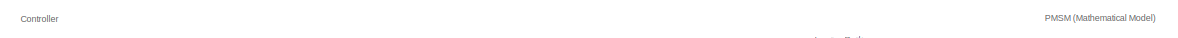
[diagram: root canvas - part 1/4, top center region]
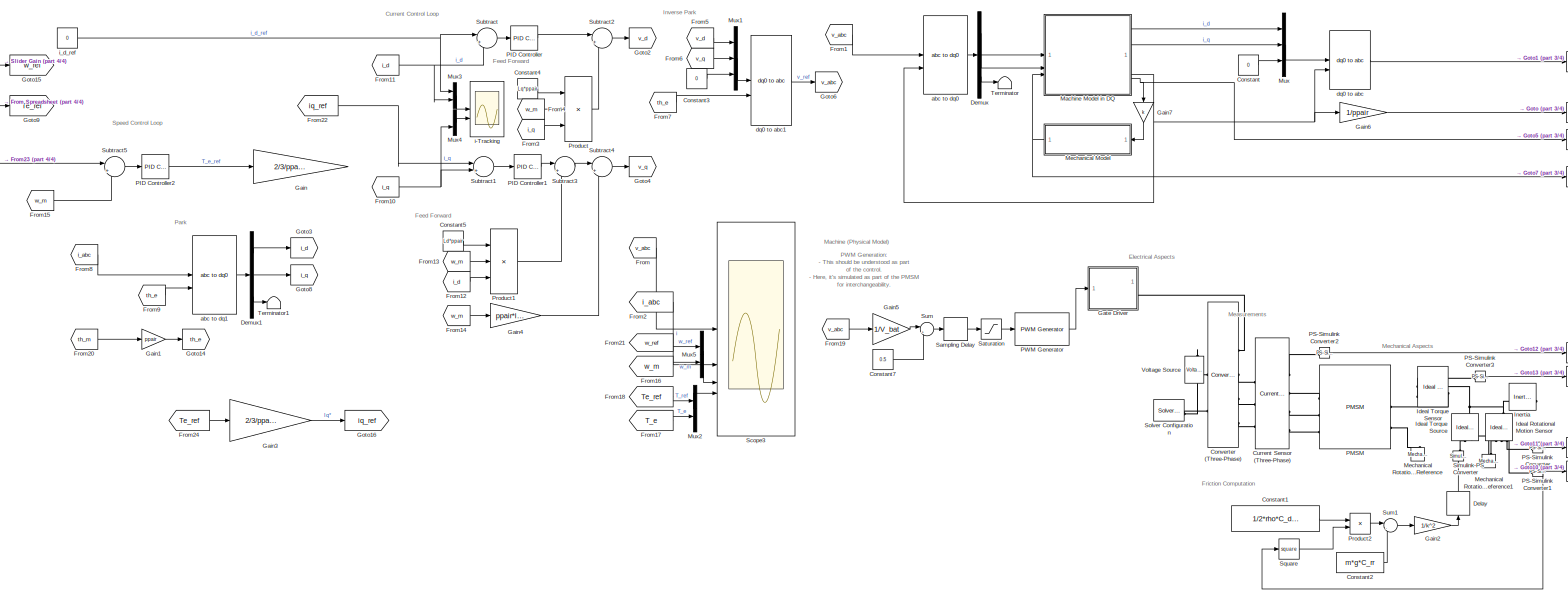
[diagram: root canvas - part 2/4, most of the canvas]
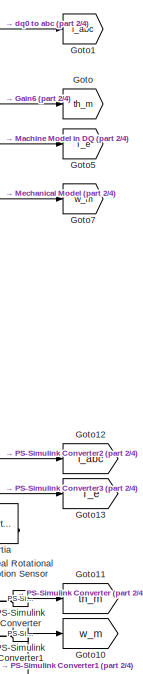
[diagram: root canvas - part 3/4, middle right region]
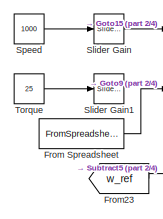
[diagram: root canvas - part 4/4, top left region]
MODEL slx_a406dee03cd6
KIND model
CONFIG AbsTol = auto
CONFIG EnableMultiTasking = off
CONFIG FixedStep = 1e-5
CONFIG MaxStep = 1e-4
CONFIG MinStep = auto
CONFIG RelTol = 1e-3
CONFIG SampleTimeConstraint = Unconstrained
CONFIG SolverName = FixedStepAuto
CONFIG StartTime = 0.0
CONFIG StopTime = 40
BLOCK [Constant] Constant
  Value = 0
BLOCK [Constant] Constant1
  Commented = on
  Value = 1/2*rho*C_d*A_f*r^2
BLOCK [Constant] Constant2
  Commented = on
  Value = m*g*C_rr
BLOCK [Constant] Constant3
  Value = 0
BLOCK [Constant] Constant4
  Value = Lq*ppair
BLOCK [Constant] Constant5
  Value = Ld*ppair
BLOCK [Constant] Constant7
  Commented = on
  Value = 0.5
BLOCK [Reference] Converter (Three-Phase)  REF=ee_lib/Semiconductors &
Converters/Converters/Converter
(Three-Phase)
  Commented = on
  SourceBlock = ee_lib/Semiconductors &\nConverters/Converters/Converter\n(Three-Phase)
  SourceType = Converter\n(Three-Phase)
BLOCK [Reference] Current Sensor (Three-Phase)  REF=ee_lib/Sensors &
Transducers/Current Sensor
(Three-Phase)
  Commented = on
  SourceBlock = ee_lib/Sensors &\nTransducers/Current Sensor\n(Three-Phase)
  SourceType = Current Sensor\n(Three-Phase)
BLOCK [Delay] Delay
  Commented = on
  DelayLength = 1
  InputPortMap = u0
  NameLocation = right
BLOCK [Demux] Demux
  Outputs = 3
BLOCK [Demux] Demux1
  Outputs = 3
BLOCK [From] From
  GotoTag = v_abc
BLOCK [FromSpreadsheet] From Spreadsheet
  FileName = Inverter_Lap_Sim_Current_Calcs.xlsx
BLOCK [From] From1
  GotoTag = v_abc
BLOCK [From] From10
  GotoTag = i_q
BLOCK [From] From11
  GotoTag = i_d
BLOCK [From] From12
  GotoTag = i_d
BLOCK [From] From13
  GotoTag = w_m
BLOCK [From] From14
  GotoTag = w_m
BLOCK [From] From15
  GotoTag = w_m
BLOCK [From] From16
  GotoTag = w_m
BLOCK [From] From17
  GotoTag = T_e
BLOCK [From] From18
  GotoTag = Te_ref
BLOCK [From] From19
  Commented = on
  GotoTag = v_abc
BLOCK [From] From2
  GotoTag = i_abc
BLOCK [From] From20
  GotoTag = th_m
BLOCK [From] From21
  GotoTag = w_ref
BLOCK [From] From22
  GotoTag = iq_ref
BLOCK [From] From23
  GotoTag = w_ref
BLOCK [From] From24
  GotoTag = Te_ref
BLOCK [From] From3
  GotoTag = i_q
BLOCK [From] From4
  GotoTag = w_m
BLOCK [From] From5
  GotoTag = v_d
BLOCK [From] From6
  GotoTag = v_q
BLOCK [From] From7
  GotoTag = th_e
BLOCK [From] From8
  GotoTag = i_abc
BLOCK [From] From9
  GotoTag = th_e
BLOCK [Gain] Gain
  Gain = 2/3/ppair/lambda
BLOCK [Gain] Gain1
  Gain = ppair
BLOCK [Gain] Gain2
  Commented = on
  Gain = 1/k^2
BLOCK [Gain] Gain3
  Gain = 2/3/ppair/lambda
BLOCK [Gain] Gain4
  Gain = ppair*lambda
BLOCK [Gain] Gain5
  Commented = on
  Gain = 1/V_bat
BLOCK [Gain] Gain6
  Gain = 1/ppair
BLOCK [Gain] Gain7
  Gain = k
  NameLocation = left
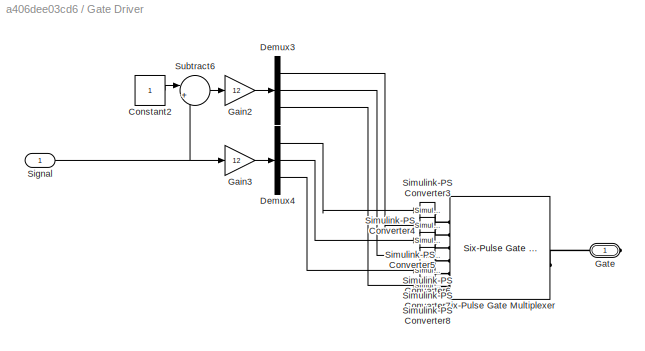
BLOCK [SubSystem] Gate Driver
  Commented = on
BLOCK [Constant] Gate Driver/Constant2
BLOCK [Demux] Gate Driver/Demux3
  Outputs = 3
BLOCK [Demux] Gate Driver/Demux4
  Outputs = 3
BLOCK [Gain] Gate Driver/Gain2
  Gain = 12
BLOCK [Gain] Gate Driver/Gain3
  Gain = 12
BLOCK [PMIOPort] Gate Driver/Gate
  Side = Right
BLOCK [Inport] Gate Driver/Signal
BLOCK [Reference] Gate Driver/Simulink-PS Converter3  REF=nesl_utility/Simulink-PS
Converter
  SourceBlock = nesl_utility/Simulink-PS\nConverter
  SourceType = Simulink-PS\nConverter
BLOCK [Reference] Gate Driver/Simulink-PS Converter4  REF=nesl_utility/Simulink-PS
Converter
  SourceBlock = nesl_utility/Simulink-PS\nConverter
  SourceType = Simulink-PS\nConverter
BLOCK [Reference] Gate Driver/Simulink-PS Converter5  REF=nesl_utility/Simulink-PS
Converter
  SourceBlock = nesl_utility/Simulink-PS\nConverter
  SourceType = Simulink-PS\nConverter
BLOCK [Reference] Gate Driver/Simulink-PS Converter6  REF=nesl_utility/Simulink-PS
Converter
  SourceBlock = nesl_utility/Simulink-PS\nConverter
  SourceType = Simulink-PS\nConverter
BLOCK [Reference] Gate Driver/Simulink-PS Converter7  REF=nesl_utility/Simulink-PS
Converter
  SourceBlock = nesl_utility/Simulink-PS\nConverter
  SourceType = Simulink-PS\nConverter
BLOCK [Reference] Gate Driver/Simulink-PS Converter8  REF=nesl_utility/Simulink-PS
Converter
  SourceBlock = nesl_utility/Simulink-PS\nConverter
  SourceType = Simulink-PS\nConverter
BLOCK [Reference] Gate Driver/Six-Pulse Gate Multiplexer  REF=ee_lib/Semiconductors &
Converters/Converters/Six-Pulse Gate
Multiplexer
  SourceBlock = ee_lib/Semiconductors &\nConverters/Converters/Six-Pulse Gate\nMultiplexer
  SourceType = Six-Pulse Gate\nMultiplexer
BLOCK [Sum] Gate Driver/Subtract6
  Inputs = |+-
BLOCK [Goto] Goto
  GotoTag = th_m
BLOCK [Goto] Goto1
  GotoTag = i_abc
BLOCK [Goto] Goto10
  Commented = on
  GotoTag = w_m
BLOCK [Goto] Goto11
  Commented = on
  GotoTag = th_m
BLOCK [Goto] Goto12
  Commented = on
  GotoTag = i_abc
BLOCK [Goto] Goto13
  Commented = on
  GotoTag = T_e
BLOCK [Goto] Goto14
  GotoTag = th_e
BLOCK [Goto] Goto15
  GotoTag = w_ref
BLOCK [Goto] Goto16
  GotoTag = iq_ref
BLOCK [Goto] Goto2
  GotoTag = v_d
BLOCK [Goto] Goto3
  GotoTag = i_d
BLOCK [Goto] Goto4
  GotoTag = v_q
BLOCK [Goto] Goto5
  GotoTag = T_e
BLOCK [Goto] Goto6
  GotoTag = v_abc
BLOCK [Goto] Goto7
  GotoTag = w_m
BLOCK [Goto] Goto8
  GotoTag = i_q
BLOCK [Goto] Goto9
  GotoTag = Te_ref
BLOCK [Reference] Ideal Rotational Motion Sensor  REF=fl_lib/Mechanical/Mechanical Sensors/Ideal Rotational
Motion Sensor
  Commented = on
  NameLocation = left
  SourceBlock = fl_lib/Mechanical/Mechanical Sensors/Ideal Rotational\nMotion Sensor
  SourceType = Ideal Rotational\nMotion Sensor
BLOCK [Reference] Ideal Torque Sensor  REF=fl_lib/Mechanical/Mechanical Sensors/Ideal Torque Sensor
  Commented = on
  NameLocation = top
  SourceBlock = fl_lib/Mechanical/Mechanical Sensors/Ideal Torque Sensor
  SourceType = Ideal Torque Sensor
BLOCK [Reference] Ideal Torque Source  REF=fl_lib/Mechanical/Mechanical Sources/Ideal Torque Source
  Commented = on
  NameLocation = right
  SourceBlock = fl_lib/Mechanical/Mechanical Sources/Ideal Torque Source
  SourceType = Ideal Torque Source
BLOCK [Reference] Inertia  REF=fl_lib/Mechanical/Rotational Elements/Inertia
  Commented = on
  NameLocation = top
  SourceBlock = fl_lib/Mechanical/Rotational Elements/Inertia
  SourceType = Inertia
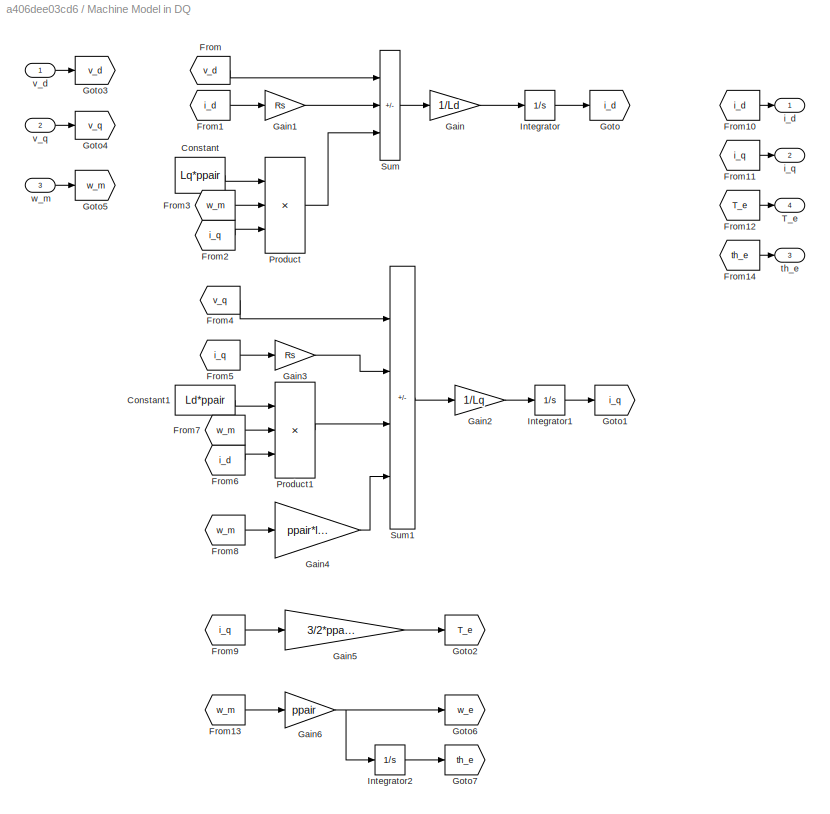
BLOCK [SubSystem] Machine Model in DQ
BLOCK [Constant] Machine Model in DQ/Constant
  Value = Lq*ppair
BLOCK [Constant] Machine Model in DQ/Constant1
  Value = Ld*ppair
BLOCK [From] Machine Model in DQ/From
  GotoTag = v_d
BLOCK [From] Machine Model in DQ/From1
  GotoTag = i_d
BLOCK [From] Machine Model in DQ/From10
  GotoTag = i_d
BLOCK [From] Machine Model in DQ/From11
  GotoTag = i_q
BLOCK [From] Machine Model in DQ/From12
  GotoTag = T_e
BLOCK [From] Machine Model in DQ/From13
  GotoTag = w_m
BLOCK [From] Machine Model in DQ/From14
  GotoTag = th_e
BLOCK [From] Machine Model in DQ/From2
  GotoTag = i_q
BLOCK [From] Machine Model in DQ/From3
  GotoTag = w_m
BLOCK [From] Machine Model in DQ/From4
  GotoTag = v_q
BLOCK [From] Machine Model in DQ/From5
  GotoTag = i_q
BLOCK [From] Machine Model in DQ/From6
  GotoTag = i_d
BLOCK [From] Machine Model in DQ/From7
  GotoTag = w_m
BLOCK [From] Machine Model in DQ/From8
  GotoTag = w_m
BLOCK [From] Machine Model in DQ/From9
  GotoTag = i_q
BLOCK [Gain] Machine Model in DQ/Gain
  Gain = 1/Ld
BLOCK [Gain] Machine Model in DQ/Gain1
  Gain = Rs
BLOCK [Gain] Machine Model in DQ/Gain2
  Gain = 1/Lq
BLOCK [Gain] Machine Model in DQ/Gain3
  Gain = Rs
BLOCK [Gain] Machine Model in DQ/Gain4
  Gain = ppair*lambda
BLOCK [Gain] Machine Model in DQ/Gain5
  Gain = 3/2*ppair*lambda
BLOCK [Gain] Machine Model in DQ/Gain6
  Gain = ppair
BLOCK [Goto] Machine Model in DQ/Goto
  GotoTag = i_d
BLOCK [Goto] Machine Model in DQ/Goto1
  GotoTag = i_q
BLOCK [Goto] Machine Model in DQ/Goto2
  GotoTag = T_e
BLOCK [Goto] Machine Model in DQ/Goto3
  GotoTag = v_d
BLOCK [Goto] Machine Model in DQ/Goto4
  GotoTag = v_q
BLOCK [Goto] Machine Model in DQ/Goto5
  GotoTag = w_m
BLOCK [Goto] Machine Model in DQ/Goto6
  GotoTag = w_e
BLOCK [Goto] Machine Model in DQ/Goto7
  GotoTag = th_e
BLOCK [Integrator] Machine Model in DQ/Integrator
BLOCK [Integrator] Machine Model in DQ/Integrator1
BLOCK [Integrator] Machine Model in DQ/Integrator2
BLOCK [Product] Machine Model in DQ/Product
  Inputs = 3
BLOCK [Product] Machine Model in DQ/Product1
  Inputs = 3
BLOCK [Sum] Machine Model in DQ/Sum
  IconShape = rectangular
  Inputs = +-+
BLOCK [Sum] Machine Model in DQ/Sum1
  IconShape = rectangular
  Inputs = +---
BLOCK [Outport] Machine Model in DQ/T_e
  Port = 4
BLOCK [Outport] Machine Model in DQ/i_d
BLOCK [Outport] Machine Model in DQ/i_q
  Port = 2
BLOCK [Outport] Machine Model in DQ/th_e
  Port = 3
BLOCK [Inport] Machine Model in DQ/v_d
BLOCK [Inport] Machine Model in DQ/v_q
  Port = 2
BLOCK [Inport] Machine Model in DQ/w_m
  Port = 3
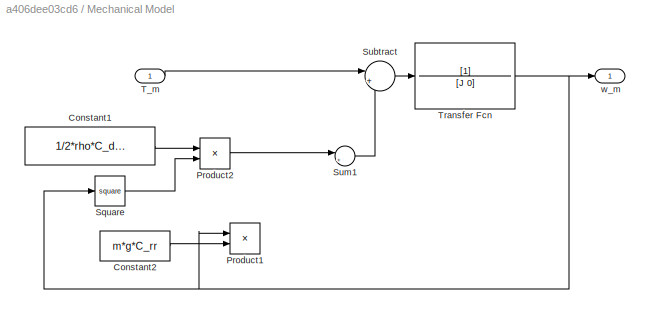
BLOCK [SubSystem] Mechanical Model
BLOCK [Constant] Mechanical Model/Constant1
  Value = 1/2*rho*C_d*A_f*r^2
BLOCK [Constant] Mechanical Model/Constant2
  Value = m*g*C_rr
BLOCK [Product] Mechanical Model/Product1
BLOCK [Product] Mechanical Model/Product2
BLOCK [Math] Mechanical Model/Square
  Operator = square
BLOCK [Sum] Mechanical Model/Subtract
  Inputs = |+-
BLOCK [Sum] Mechanical Model/Sum1
  Inputs = |++
BLOCK [Inport] Mechanical Model/T_m
BLOCK [TransferFcn] Mechanical Model/Transfer Fcn
  Denominator = [J 0]
BLOCK [Outport] Mechanical Model/w_m
BLOCK [Reference] Mechanical Rotational Reference  REF=fl_lib/Mechanical/Rotational Elements/Mechanical
Rotational Reference
  Commented = on
  NameLocation = right
  SourceBlock = fl_lib/Mechanical/Rotational Elements/Mechanical\nRotational Reference
  SourceType = Mechanical\nRotational Reference
BLOCK [Reference] Mechanical Rotational Reference1  REF=fl_lib/Mechanical/Rotational Elements/Mechanical
Rotational Reference
  Commented = on
  NameLocation = right
  SourceBlock = fl_lib/Mechanical/Rotational Elements/Mechanical\nRotational Reference
  SourceType = Mechanical\nRotational Reference
BLOCK [Mux] Mux
  DisplayOption = bar
  Inputs = 3
BLOCK [Mux] Mux1
  DisplayOption = bar
  Inputs = 3
BLOCK [Mux] Mux2
  DisplayOption = bar
  Inputs = 2
BLOCK [Mux] Mux3
  DisplayOption = bar
  Inputs = 2
BLOCK [Mux] Mux4
  DisplayOption = bar
  Inputs = 2
BLOCK [Mux] Mux5
  DisplayOption = bar
  Inputs = 2
BLOCK [Reference] PID Controller  REF=slpidlib/PID Controller
  LibrarySourceBlock = simulink/Continuous/PID Controller
  SourceBlock = slpidlib/PID Controller
  SourceType = PID 1dof
BLOCK [Reference] PID Controller1  REF=slpidlib/PID Controller
  LibrarySourceBlock = simulink/Continuous/PID Controller
  SourceBlock = slpidlib/PID Controller
  SourceType = PID 1dof
BLOCK [Reference] PID Controller2  REF=slpidlib/PID Controller
  LibrarySourceBlock = simulink/Continuous/PID Controller
  SourceBlock = slpidlib/PID Controller
  SourceType = PID 1dof
BLOCK [Reference] PMSM  REF=ee_lib/Electromechanical/Permanent Magnet/PMSM
  Commented = on
  SourceBlock = ee_lib/Electromechanical/Permanent Magnet/PMSM
  SourceType = PMSM
BLOCK [Reference] PS-Simulink Converter  REF=nesl_utility/PS-Simulink
Converter
  Commented = on
  SourceBlock = nesl_utility/PS-Simulink\nConverter
  SourceType = PS-Simulink\nConverter
BLOCK [Reference] PS-Simulink Converter1  REF=nesl_utility/PS-Simulink
Converter
  Commented = on
  SourceBlock = nesl_utility/PS-Simulink\nConverter
  SourceType = PS-Simulink\nConverter
BLOCK [Reference] PS-Simulink Converter2  REF=nesl_utility/PS-Simulink
Converter
  Commented = on
  SourceBlock = nesl_utility/PS-Simulink\nConverter
  SourceType = PS-Simulink\nConverter
BLOCK [Reference] PS-Simulink Converter3  REF=nesl_utility/PS-Simulink
Converter
  Commented = on
  SourceBlock = nesl_utility/PS-Simulink\nConverter
  SourceType = PS-Simulink\nConverter
BLOCK [Reference] PWM Generator  REF=eePwmGenerator/PWM Generator
  Commented = on
  LibrarySourceBlock = ee_sl_lib/Pulse Width\nModulation/PWM Generator
  SourceBlock = eePwmGenerator/PWM Generator
  SourceType = PWM Generator
BLOCK [Product] Product
  Inputs = 3
BLOCK [Product] Product1
  Inputs = 3
BLOCK [Product] Product2
  Commented = on
BLOCK [Delay] Sampling Delay
  Commented = on
  DelayLength = 1
  InputPortMap = u0
  SampleTime = 1e-6
BLOCK [Saturate] Saturation
  Commented = on
  LowerLimit = 0
  UpperLimit = 1
BLOCK [Scope] Scope3
  Floating = off
  NumInputPorts = 4
  ScopeSpecificationString = Simulink.scopes.TimeScopeBlockCfg('CurrentConfiguration', extmgr.ConfigurationSet(extmgr.Configuration('Core','General UI',true),extmgr.Configuration('Core','Source UI',true),extmgr.Configuration('Sources','WiredSimulink',true,'DataLoggingVariableName','ScopeData3'),extmgr.Configuration('Visuals','Time Domain',true,'SerializedDisplays',{struct('MinYLimReal','-54.09802','MaxYLimReal','61.90039','YL...<+4191ch>
BLOCK [Reference] Simulink-PS Converter  REF=nesl_utility/Simulink-PS
Converter
  Commented = on
  NameLocation = right
  SourceBlock = nesl_utility/Simulink-PS\nConverter
  SourceType = Simulink-PS\nConverter
BLOCK [Reference] Slider Gain  REF=simulink/Math
Operations/Slider
Gain
  SourceBlock = simulink/Math\nOperations/Slider\nGain
  SourceType = Slider Gain
BLOCK [Reference] Slider Gain1  REF=simulink/Math
Operations/Slider
Gain
  SourceBlock = simulink/Math\nOperations/Slider\nGain
  SourceType = Slider Gain
BLOCK [Reference] Solver Configuration  REF=nesl_utility/Solver
Configuration
  Commented = on
  SourceBlock = nesl_utility/Solver\nConfiguration
  SourceType = Solver\nConfiguration
BLOCK [Constant] Speed
  Value = 1000
BLOCK [Math] Square
  Commented = on
  Operator = square
BLOCK [Sum] Subtract
  Inputs = |+-
BLOCK [Sum] Subtract1
  Inputs = |+-
BLOCK [Sum] Subtract2
  Inputs = |+-
BLOCK [Sum] Subtract3
  Inputs = |++
BLOCK [Sum] Subtract4
  Inputs = |++
BLOCK [Sum] Subtract5
  Inputs = |+-
BLOCK [Sum] Sum
  Commented = on
  Inputs = |++
BLOCK [Sum] Sum1
  Commented = on
  Inputs = |--
BLOCK [Terminator] Terminator
BLOCK [Terminator] Terminator1
BLOCK [Constant] Torque
  Value = 25
BLOCK [Reference] Voltage Source  REF=ee_lib/Sources/Voltage Source
  Commented = on
  NameLocation = right
  SourceBlock = ee_lib/Sources/Voltage Source
  SourceType = Voltage Source
BLOCK [Reference] abc to dq0  REF=spsabctodq0Lib/abc to dq0
  LibrarySourceBlock = sps_lib/Control/abc to dq0
  SourceBlock = spsabctodq0Lib/abc to dq0
  SourceType = abc to dq0 Transformation
BLOCK [Reference] abc to dq1  REF=spsabctodq0Lib/abc to dq0
  LibrarySourceBlock = sps_lib/Control/abc to dq0
  SourceBlock = spsabctodq0Lib/abc to dq0
  SourceType = abc to dq0 Transformation
BLOCK [Reference] dq0 to abc  REF=spsdq0toabcLib/dq0 to abc
  LibrarySourceBlock = sps_lib/Control/dq0 to abc
  SourceBlock = spsdq0toabcLib/dq0 to abc
  SourceType = dq0 to abc Transformation
BLOCK [Reference] dq0 to abc1  REF=spsdq0toabcLib/dq0 to abc
  LibrarySourceBlock = sps_lib/Control/dq0 to abc
  SourceBlock = spsdq0toabcLib/dq0 to abc
  SourceType = dq0 to abc Transformation
BLOCK [Scope] i-Tracking
  Floating = off
  NumInputPorts = 2
  ScopeSpecificationString = Simulink.scopes.TimeScopeBlockCfg('CurrentConfiguration', extmgr.ConfigurationSet(extmgr.Configuration('Core','General UI',true),extmgr.Configuration('Core','Source UI',true),extmgr.Configuration('Sources','WiredSimulink',true,'DataLoggingVariableName','ScopeData1'),extmgr.Configuration('Visuals','Time Domain',true,'SerializedDisplays',{struct('MinYLimReal','-0.00000058','MaxYLimReal','0.00000032'...<+2319ch>
BLOCK [Constant] i_d_ref
  Value = 0
ANNOTATION (root): Controller
ANNOTATION (root): Current Control Loop
ANNOTATION (root): Electrical Aspects
ANNOTATION (root): Feed Forward
ANNOTATION (root): Friction Computation
ANNOTATION (root): Inverse Park
ANNOTATION (root): Machine (Physical Model)
ANNOTATION (root): Measurements
ANNOTATION (root): Mechanical Aspects
ANNOTATION (root): PMSM (Mathematical Model)
ANNOTATION (root): PWM Generation: - This should be understood as part of the control. - Here, it's simulated as part of the PMSM for interchangeability.
ANNOTATION (root): Park
ANNOTATION (root): Speed Control Loop
LINE Constant1:1 -> Product2:1
LINE Constant2:1 -> Sum1:2
LINE Constant3:1 -> Mux1:3
LINE Constant4:1 -> Product:1
LINE Constant5:1 -> Product1:1
LINE Constant7:1 -> Sum:2
LINE Constant:1 -> Mux:3
LINE Delay:1 -> Simulink-PS Converter:1
LINE Demux1:1 -> Goto3:1
LINE Demux1:2 -> Goto8:1
LINE Demux1:3 -> Terminator1:1
LINE Demux:1 -> Machine Model in DQ:1
LINE Demux:2 -> Machine Model in DQ:2
LINE Demux:3 -> Terminator:1
LINE From Spreadsheet:1 -> Goto9:1
NET From10:1 -> Mux4:2, Subtract1:2
NET From11:1 -> Mux3:2, Subtract:2
LINE From12:1 -> Product1:3
LINE From13:1 -> Product1:2
LINE From14:1 -> Gain4:1
LINE From15:1 -> Subtract5:2
LINE From16:1 -> Mux5:2
LINE From17:1 -> Mux2:2
LINE From18:1 -> Mux2:1
LINE From19:1 -> Gain5:1
LINE From1:1 -> abc to dq0:1
LINE From20:1 -> Gain1:1
LINE From21:1 -> Mux5:1
LINE From22:1 -> Subtract1:1
LINE From23:1 -> Subtract5:1
LINE From24:1 -> Gain3:1
LINE From2:1 -> Scope3:2
LINE From3:1 -> Product:3
LINE From4:1 -> Product:2
LINE From5:1 -> Mux1:1
LINE From6:1 -> Mux1:2
LINE From7:1 -> dq0 to abc1:2
LINE From8:1 -> abc to dq1:1
LINE From9:1 -> abc to dq1:2
LINE From:1 -> Scope3:1
LINE Gain1:1 -> Goto14:1
LINE Gain2:1 -> Delay:1
LINE Gain3:1 -> Goto16:1
LINE Gain4:1 -> Subtract4:2
LINE Gain5:1 -> Sum:1
LINE Gain6:1 -> Goto:1
LINE Gain7:1 -> Mechanical Model:1
LINE Gate Driver/Constant2:1 -> Gate Driver/Subtract6:1
LINE Gate Driver/Demux3:1 -> Gate Driver/Simulink-PS Converter4:1
LINE Gate Driver/Demux3:2 -> Gate Driver/Simulink-PS Converter6:1
LINE Gate Driver/Demux3:3 -> Gate Driver/Simulink-PS Converter8:1
LINE Gate Driver/Demux4:1 -> Gate Driver/Simulink-PS Converter3:1
LINE Gate Driver/Demux4:2 -> Gate Driver/Simulink-PS Converter5:1
LINE Gate Driver/Demux4:3 -> Gate Driver/Simulink-PS Converter7:1
LINE Gate Driver/Gain2:1 -> Gate Driver/Demux3:1
LINE Gate Driver/Gain3:1 -> Gate Driver/Demux4:1
NET Gate Driver/Signal:1 -> Gate Driver/Gain3:1, Gate Driver/Subtract6:2
LINE Gate Driver/Subtract6:1 -> Gate Driver/Gain2:1
LINE Machine Model in DQ/Constant1:1 -> Machine Model in DQ/Product1:1
LINE Machine Model in DQ/Constant:1 -> Machine Model in DQ/Product:1
LINE Machine Model in DQ/From10:1 -> Machine Model in DQ/i_d:1
LINE Machine Model in DQ/From11:1 -> Machine Model in DQ/i_q:1
LINE Machine Model in DQ/From12:1 -> Machine Model in DQ/T_e:1
LINE Machine Model in DQ/From13:1 -> Machine Model in DQ/Gain6:1
LINE Machine Model in DQ/From14:1 -> Machine Model in DQ/th_e:1
LINE Machine Model in DQ/From1:1 -> Machine Model in DQ/Gain1:1
LINE Machine Model in DQ/From2:1 -> Machine Model in DQ/Product:3
LINE Machine Model in DQ/From3:1 -> Machine Model in DQ/Product:2
LINE Machine Model in DQ/From4:1 -> Machine Model in DQ/Sum1:1
LINE Machine Model in DQ/From5:1 -> Machine Model in DQ/Gain3:1
LINE Machine Model in DQ/From6:1 -> Machine Model in DQ/Product1:3
LINE Machine Model in DQ/From7:1 -> Machine Model in DQ/Product1:2
LINE Machine Model in DQ/From8:1 -> Machine Model in DQ/Gain4:1
LINE Machine Model in DQ/From9:1 -> Machine Model in DQ/Gain5:1
LINE Machine Model in DQ/From:1 -> Machine Model in DQ/Sum:1
LINE Machine Model in DQ/Gain1:1 -> Machine Model in DQ/Sum:2
LINE Machine Model in DQ/Gain2:1 -> Machine Model in DQ/Integrator1:1
LINE Machine Model in DQ/Gain3:1 -> Machine Model in DQ/Sum1:2
LINE Machine Model in DQ/Gain4:1 -> Machine Model in DQ/Sum1:4
LINE Machine Model in DQ/Gain5:1 -> Machine Model in DQ/Goto2:1
NET Machine Model in DQ/Gain6:1 -> Machine Model in DQ/Goto6:1, Machine Model in DQ/Integrator2:1
LINE Machine Model in DQ/Gain:1 -> Machine Model in DQ/Integrator:1
LINE Machine Model in DQ/Integrator1:1 -> Machine Model in DQ/Goto1:1
LINE Machine Model in DQ/Integrator2:1 -> Machine Model in DQ/Goto7:1
LINE Machine Model in DQ/Integrator:1 -> Machine Model in DQ/Goto:1
LINE Machine Model in DQ/Product1:1 -> Machine Model in DQ/Sum1:3
LINE Machine Model in DQ/Product:1 -> Machine Model in DQ/Sum:3
LINE Machine Model in DQ/Sum1:1 -> Machine Model in DQ/Gain2:1
LINE Machine Model in DQ/Sum:1 -> Machine Model in DQ/Gain:1
LINE Machine Model in DQ/v_d:1 -> Machine Model in DQ/Goto3:1
LINE Machine Model in DQ/v_q:1 -> Machine Model in DQ/Goto4:1
LINE Machine Model in DQ/w_m:1 -> Machine Model in DQ/Goto5:1
LINE Machine Model in DQ:1 -> Mux:1
LINE Machine Model in DQ:2 -> Mux:2
NET Machine Model in DQ:3 -> Gain6:1, abc to dq0:2, dq0 to abc:2
NET Machine Model in DQ:4 -> Gain7:1, Goto5:1
LINE Mechanical Model/Constant1:1 -> Mechanical Model/Product2:1
LINE Mechanical Model/Constant2:1 -> Mechanical Model/Product1:2
LINE Mechanical Model/Product2:1 -> Mechanical Model/Sum1:1
LINE Mechanical Model/Square:1 -> Mechanical Model/Product2:2
LINE Mechanical Model/Subtract:1 -> Mechanical Model/Transfer Fcn:1
LINE Mechanical Model/Sum1:1 -> Mechanical Model/Subtract:2
LINE Mechanical Model/T_m:1 -> Mechanical Model/Subtract:1
NET Mechanical Model/Transfer Fcn:1 -> Mechanical Model/Product1:1, Mechanical Model/Square:1, Mechanical Model/w_m:1
NET Mechanical Model:1 -> Goto7:1, Machine Model in DQ:3
LINE Mux1:1 -> dq0 to abc1:1
LINE Mux2:1 -> Scope3:4
LINE Mux3:1 -> i-Tracking:1
LINE Mux4:1 -> i-Tracking:2
LINE Mux5:1 -> Scope3:3
LINE Mux:1 -> dq0 to abc:1
LINE PID Controller1:1 -> Subtract3:1
LINE PID Controller2:1 -> Gain:1
LINE PID Controller:1 -> Subtract2:1
NET PS-Simulink Converter1:1 -> Goto10:1, Square:1
LINE PS-Simulink Converter2:1 -> Goto12:1
LINE PS-Simulink Converter3:1 -> Goto13:1
LINE PS-Simulink Converter:1 -> Goto11:1
LINE PWM Generator:1 -> Gate Driver:1
LINE Product1:1 -> Subtract3:2
LINE Product2:1 -> Sum1:1
LINE Product:1 -> Subtract2:2
LINE Sampling Delay:1 -> Saturation:1
LINE Saturation:1 -> PWM Generator:1
LINE Slider Gain:1 -> Goto15:1
LINE Speed:1 -> Slider Gain:1
LINE Square:1 -> Product2:2
LINE Subtract1:1 -> PID Controller1:1
LINE Subtract2:1 -> Goto2:1
LINE Subtract3:1 -> Subtract4:1
LINE Subtract4:1 -> Goto4:1
LINE Subtract5:1 -> PID Controller2:1
LINE Subtract:1 -> PID Controller:1
LINE Sum1:1 -> Gain2:1
LINE Sum:1 -> Sampling Delay:1
LINE Torque:1 -> Slider Gain1:1
LINE abc to dq0:1 -> Demux:1
LINE abc to dq1:1 -> Demux1:1
LINE dq0 to abc1:1 -> Goto6:1
LINE dq0 to abc:1 -> Goto1:1
NET i_d_ref:1 -> Mux3:1, Subtract:1
PLINE Converter (Three-Phase):LConn1 -- Gate Driver:RConn1
PLINE Converter (Three-Phase):LConn2 -- Current Sensor (Three-Phase):LConn1
PLINE Converter (Three-Phase):LConn3 -- Current Sensor (Three-Phase):LConn2
PLINE Converter (Three-Phase):LConn4 -- Current Sensor (Three-Phase):LConn3
PLINE Converter (Three-Phase):RConn1 -- Voltage Source:LConn1
PNET net1: Converter (Three-Phase):RConn2 -- Solver Configuration:RConn1 -- Voltage Source:RConn1
PLINE Current Sensor (Three-Phase):RConn1 -- PS-Simulink Converter2:LConn1
PLINE Current Sensor (Three-Phase):RConn2 -- PMSM:LConn1
PLINE Current Sensor (Three-Phase):RConn3 -- PMSM:LConn2
PLINE Current Sensor (Three-Phase):RConn4 -- PMSM:LConn3
PLINE Gate Driver/Gate:RConn1 -- Gate Driver/Six-Pulse Gate Multiplexer:RConn1
PLINE Gate Driver/Simulink-PS Converter3:RConn1 -- Gate Driver/Six-Pulse Gate Multiplexer:LConn1
PLINE Gate Driver/Simulink-PS Converter4:RConn1 -- Gate Driver/Six-Pulse Gate Multiplexer:LConn2
PLINE Gate Driver/Simulink-PS Converter5:RConn1 -- Gate Driver/Six-Pulse Gate Multiplexer:LConn3
PLINE Gate Driver/Simulink-PS Converter6:RConn1 -- Gate Driver/Six-Pulse Gate Multiplexer:LConn4
PLINE Gate Driver/Simulink-PS Converter7:RConn1 -- Gate Driver/Six-Pulse Gate Multiplexer:LConn5
PLINE Gate Driver/Simulink-PS Converter8:RConn1 -- Gate Driver/Six-Pulse Gate Multiplexer:LConn6
PNET net2: Ideal Rotational Motion Sensor:LConn1 -- Ideal Torque Sensor:RConn1 -- Ideal Torque Source:LConn1 -- Inertia:LConn1
PNET net3: Ideal Rotational Motion Sensor:RConn1 -- Ideal Torque Source:RConn2 -- Mechanical Rotational Reference1:LConn1
PLINE Ideal Rotational Motion Sensor:RConn2 -- PS-Simulink Converter1:LConn1
PLINE Ideal Rotational Motion Sensor:RConn3 -- PS-Simulink Converter:LConn1
PLINE Ideal Torque Sensor:LConn1 -- PMSM:RConn1
PLINE Ideal Torque Sensor:RConn2 -- PS-Simulink Converter3:LConn1
PLINE Ideal Torque Source:RConn1 -- Simulink-PS Converter:RConn1
PLINE Mechanical Rotational Reference:LConn1 -- PMSM:RConn2
note: NET lines group one-source signal fan-out (src -> all destinations, sorted); 1:1 wires keep LINE; PNET lines group multi-terminal physical nets as a canonical sorted terminal list (undirected conserving connections); 2-terminal nets keep the pairwise PLINE form
